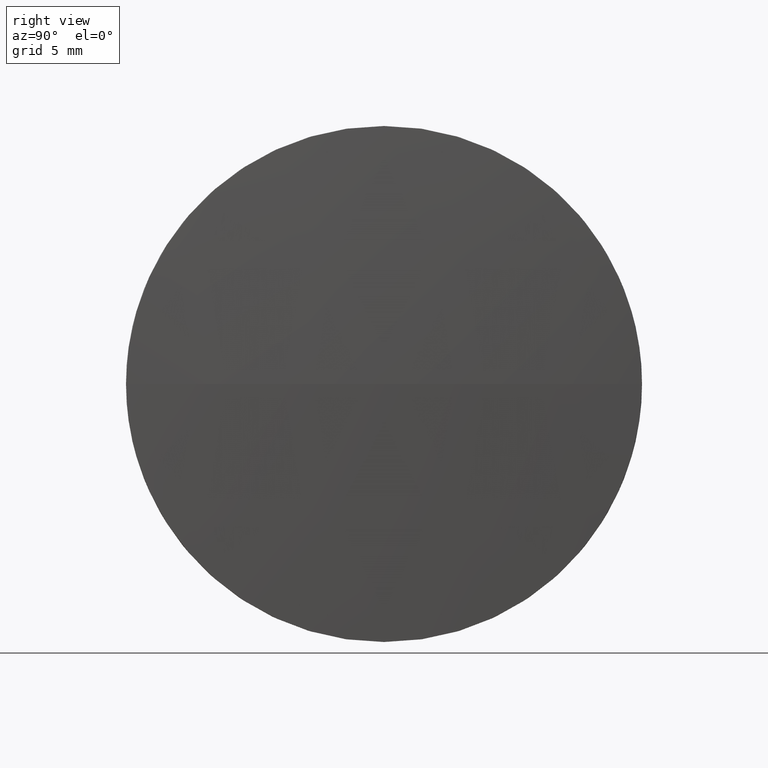
[diagram: clean part render]
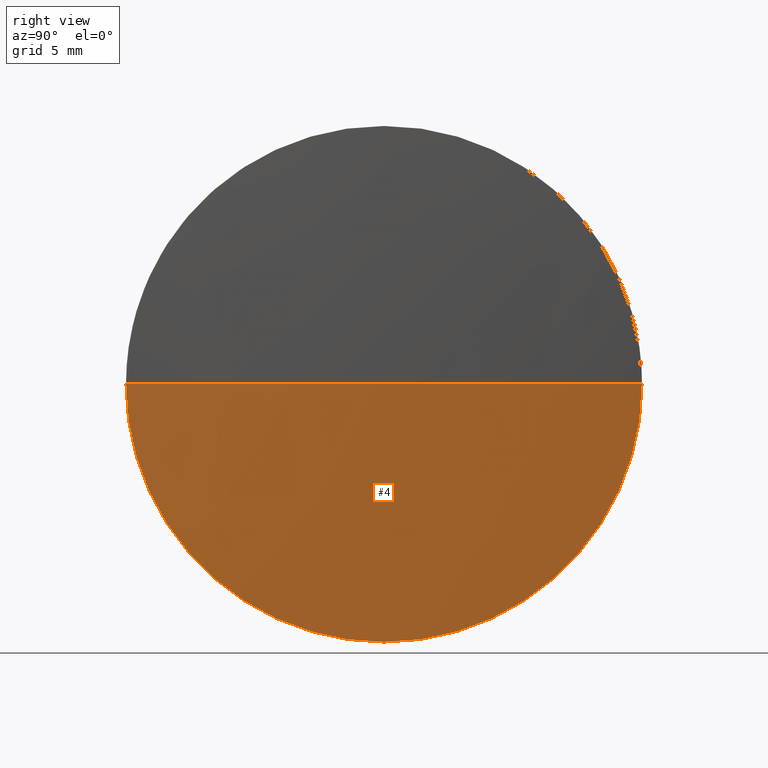
[diagram: same view with one face highlighted and labeled with its STEP entity id]
A machine part, right view. The second image highlights one B-rep face of the part: STEP entity #4.
In plain terms, the highlighted spherical surface has radius 205.782 mm.
Its self-contained STEP definition (entity closure, byte-faithful):
#1 = CIRCLE ( 'NONE', #85, 205.7821052631565800 ) ;
#2 = AXIS2_PLACEMENT_3D ( 'NONE', #115, #129, #130 ) ;
#4 = ADVANCED_FACE ( 'NONE', ( #56 ), #18, .T. ) ;
#5 = CARTESIAN_POINT ( 'NONE',  ( 381.2946754497420400, 196.5413966464076100, -1.530808498934213600E-015 ) ) ;
#8 = VERTEX_POINT ( 'NONE', #5 ) ;
#12 = ORIENTED_EDGE ( 'NONE', *, *, #167, .F. ) ;
#18 = SPHERICAL_SURFACE ( 'NONE', #160, 205.7821052631565500 ) ;
#19 = CARTESIAN_POINT ( 'NONE',  ( 381.2946754497420400, 209.0413966464078600, 0.0000000000000000000 ) ) ;
#20 = EDGE_CURVE ( 'NONE', #39, #29, #60, .T. ) ;
#27 = CARTESIAN_POINT ( 'NONE',  ( 381.6746754497421000, 209.0413966464077800, 0.0000000000000000000 ) ) ;
#29 = VERTEX_POINT ( 'NONE', #83 ) ;
#39 = VERTEX_POINT ( 'NONE', #49 ) ;
#49 = CARTESIAN_POINT ( 'NONE',  ( 381.2946754497420400, 221.5413966464080300, 0.0000000000000000000 ) ) ;
#50 = DIRECTION ( 'NONE',  ( -0.0000000000000000000, 0.0000000000000000000, 1.000000000000000000 ) ) ;
#52 = DIRECTION ( 'NONE',  ( 0.0000000000000000000, 1.224646799147353200E-016, -1.000000000000000000 ) ) ;
#54 = DIRECTION ( 'NONE',  ( 1.000000000000000000, 0.0000000000000000000, 0.0000000000000000000 ) ) ;
#56 = FACE_OUTER_BOUND ( 'NONE', #70, .T. ) ;
#60 = CIRCLE ( 'NONE', #2, 12.50000000000001100 ) ;
#63 = ORIENTED_EDGE ( 'NONE', *, *, #20, .F. ) ;
#65 = DIRECTION ( 'NONE',  ( 0.0000000000000000000, 0.0000000000000000000, 1.000000000000000000 ) ) ;
#69 = AXIS2_PLACEMENT_3D ( 'NONE', #164, #52, #154 ) ;
#70 = EDGE_LOOP ( 'NONE', ( #185, #156, #12, #63 ) ) ;
#83 = CARTESIAN_POINT ( 'NONE',  ( 381.2946754497420400, 209.0413966464078600, -12.50000000000001100 ) ) ;
#85 = AXIS2_PLACEMENT_3D ( 'NONE', #152, #50, #54 ) ;
#88 = VERTEX_POINT ( 'NONE', #27 ) ;
#115 = CARTESIAN_POINT ( 'NONE',  ( 381.2946754497420400, 209.0413966464078600, 0.0000000000000000000 ) ) ;
#122 = EDGE_CURVE ( 'NONE', #88, #8, #155, .T. ) ;
#126 = EDGE_CURVE ( 'NONE', #88, #39, #1, .T. ) ;
#129 = DIRECTION ( 'NONE',  ( -1.000000000000000000, -0.0000000000000000000, -0.0000000000000000000 ) ) ;
#130 = DIRECTION ( 'NONE',  ( 0.0000000000000000000, 0.0000000000000000000, 1.000000000000000000 ) ) ;
#133 = DIRECTION ( 'NONE',  ( -1.000000000000000000, -0.0000000000000000000, -0.0000000000000000000 ) ) ;
#145 = CARTESIAN_POINT ( 'NONE',  ( 175.8925701865855200, 209.0413966464077800, 0.0000000000000000000 ) ) ;
#152 = CARTESIAN_POINT ( 'NONE',  ( 175.8925701865855200, 209.0413966464077800, 0.0000000000000000000 ) ) ;
#154 = DIRECTION ( 'NONE',  ( 0.0000000000000000000, 1.000000000000000000, 1.224646799147353500E-016 ) ) ;
#155 = CIRCLE ( 'NONE', #69, 205.7821052631565200 ) ;
#156 = ORIENTED_EDGE ( 'NONE', *, *, #122, .T. ) ;
#158 = DIRECTION ( 'NONE',  ( 0.0000000000000000000, 1.000000000000000000, 0.0000000000000000000 ) ) ;
#160 = AXIS2_PLACEMENT_3D ( 'NONE', #145, #176, #158 ) ;
#164 = CARTESIAN_POINT ( 'NONE',  ( 175.8925701865855200, 209.0413966464077800, 0.0000000000000000000 ) ) ;
#167 = EDGE_CURVE ( 'NONE', #29, #8, #182, .T. ) ;
#176 = DIRECTION ( 'NONE',  ( -0.0000000000000000000, 0.0000000000000000000, -1.000000000000000000 ) ) ;
#179 = AXIS2_PLACEMENT_3D ( 'NONE', #19, #133, #65 ) ;
#182 = CIRCLE ( 'NONE', #179, 12.50000000000001100 ) ;
#185 = ORIENTED_EDGE ( 'NONE', *, *, #126, .F. ) ;